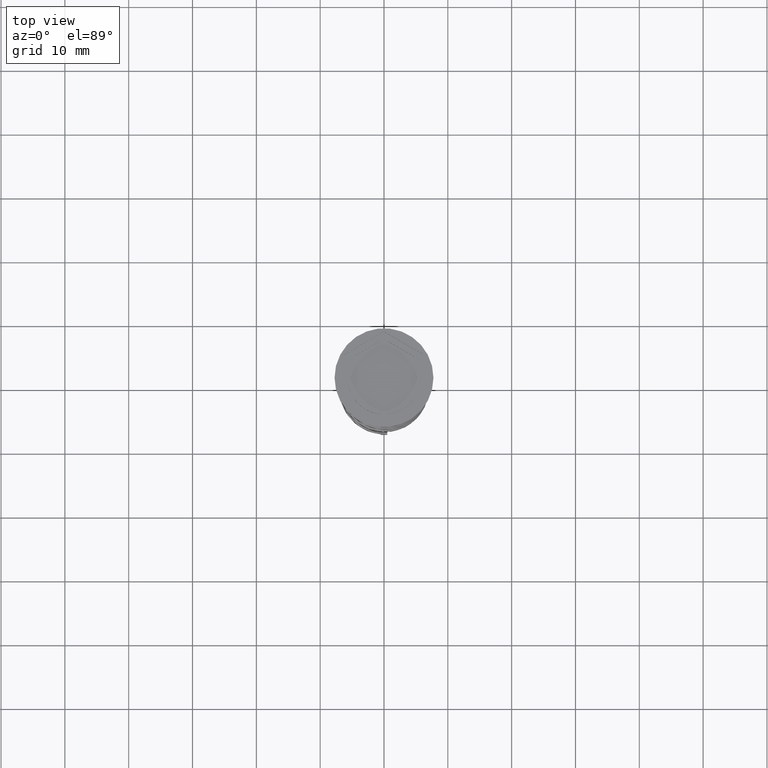
[diagram: clean part render]
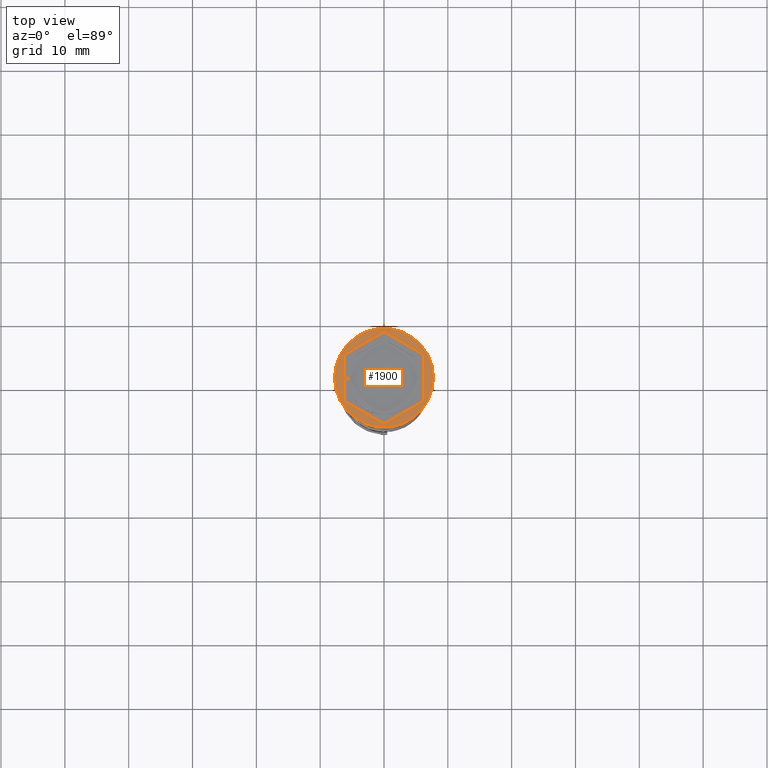
[diagram: same view with one face highlighted and labeled with its STEP entity id]
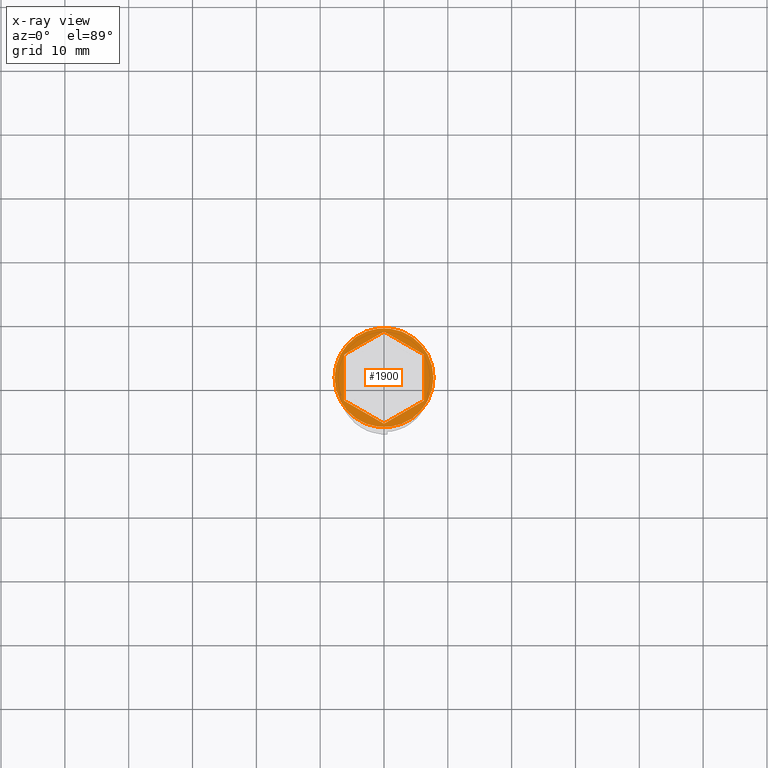
[diagram: x-ray of the same camera — body ghosted, the highlighted face saturated]
A machine part, top view. The second image highlights one B-rep face of the part: STEP entity #1900.
The next image is the same camera in x-ray: the body ghosted, the highlighted face saturated — about 0% of this face is hidden behind the body in this view.
In plain terms, the highlighted planar face has unit normal (0, -0, 1).
Its self-contained STEP definition (entity closure, byte-faithful):
#84 = DIRECTION ( 'NONE',  ( -0.000000000000000000, -0.000000000000000000, 1.000000000000000000 ) ) ;
#90 = EDGE_CURVE ( 'NONE', #936, #3116, #1438, .T. ) ;
#157 = CARTESIAN_POINT ( 'NONE',  ( -6.249999999999999112, 3.608439182435158710, 0.000000000000000000 ) ) ;
#175 = CARTESIAN_POINT ( 'NONE',  ( 6.250000000000000000, 3.608439182435161374, 0.000000000000000000 ) ) ;
#260 = ORIENTED_EDGE ( 'NONE', *, *, #1586, .F. ) ;
#261 = EDGE_CURVE ( 'NONE', #3148, #417, #1725, .T. ) ;
#272 = VERTEX_POINT ( 'NONE', #2702 ) ;
#286 = CARTESIAN_POINT ( 'NONE',  ( -6.249999999999999112, -3.608439182435161374, 0.000000000000000000 ) ) ;
#323 = DIRECTION ( 'NONE',  ( 0.8660254037844385966, -0.4999999999999998890, 0.000000000000000000 ) ) ;
#399 = CARTESIAN_POINT ( 'NONE',  ( 6.250000000000000000, 3.608439182435161374, 0.000000000000000000 ) ) ;
#417 = VERTEX_POINT ( 'NONE', #892 ) ;
#428 = AXIS2_PLACEMENT_3D ( 'NONE', #2801, #84, #3337 ) ;
#435 = CARTESIAN_POINT ( 'NONE',  ( 0.000000000000000000, 0.000000000000000000, 0.000000000000000000 ) ) ;
#445 = LINE ( 'NONE', #1559, #3374 ) ;
#534 = EDGE_CURVE ( 'NONE', #551, #1516, #1568, .T. ) ;
#551 = VERTEX_POINT ( 'NONE', #805 ) ;
#560 = LINE ( 'NONE', #286, #2848 ) ;
#566 = VERTEX_POINT ( 'NONE', #736 ) ;
#620 = EDGE_CURVE ( 'NONE', #272, #566, #560, .T. ) ;
#736 = CARTESIAN_POINT ( 'NONE',  ( 8.729740977282959667E-16, -7.216878364870321860, 0.000000000000000000 ) ) ;
#751 = CARTESIAN_POINT ( 'NONE',  ( 6.249999999999998224, -3.608439182435161374, 0.000000000000000000 ) ) ;
#782 = VECTOR ( 'NONE', #2828, 1000.000000000000000 ) ;
#805 = CARTESIAN_POINT ( 'NONE',  ( 6.249999999999998224, -3.608439182435161374, 0.000000000000000000 ) ) ;
#832 = VECTOR ( 'NONE', #2657, 1000.000000000000000 ) ;
#892 = CARTESIAN_POINT ( 'NONE',  ( 7.750000000000000000, 0.000000000000000000, 0.000000000000000000 ) ) ;
#936 = VERTEX_POINT ( 'NONE', #2855 ) ;
#1072 = ORIENTED_EDGE ( 'NONE', *, *, #2894, .T. ) ;
#1158 = AXIS2_PLACEMENT_3D ( 'NONE', #2086, #3401, #2049 ) ;
#1204 = ORIENTED_EDGE ( 'NONE', *, *, #90, .F. ) ;
#1227 = DIRECTION ( 'NONE',  ( 1.000000000000000000, 0.000000000000000000, 0.000000000000000000 ) ) ;
#1235 = CARTESIAN_POINT ( 'NONE',  ( -7.750000000000000000, 9.491012693391987787E-16, 0.000000000000000000 ) ) ;
#1289 = LINE ( 'NONE', #3174, #832 ) ;
#1376 = ORIENTED_EDGE ( 'NONE', *, *, #261, .T. ) ;
#1438 = LINE ( 'NONE', #1775, #1888 ) ;
#1440 = ORIENTED_EDGE ( 'NONE', *, *, #534, .F. ) ;
#1516 = VERTEX_POINT ( 'NONE', #175 ) ;
#1521 = EDGE_LOOP ( 'NONE', ( #2773, #1440, #260, #2807, #2474, #1204 ) ) ;
#1559 = CARTESIAN_POINT ( 'NONE',  ( 8.729740977282959667E-16, -7.216878364870321860, 0.000000000000000000 ) ) ;
#1568 = LINE ( 'NONE', #751, #2729 ) ;
#1586 = EDGE_CURVE ( 'NONE', #566, #551, #445, .T. ) ;
#1725 = CIRCLE ( 'NONE', #1158, 7.750000000000000000 ) ;
#1759 = LINE ( 'NONE', #399, #782 ) ;
#1775 = CARTESIAN_POINT ( 'NONE',  ( 0.000000000000000000, 7.216878364870320084, 0.000000000000000000 ) ) ;
#1813 = DIRECTION ( 'NONE',  ( 2.403703357979454647E-16, 1.000000000000000000, 0.000000000000000000 ) ) ;
#1888 = VECTOR ( 'NONE', #2827, 1000.000000000000114 ) ;
#1900 = ADVANCED_FACE ( 'NONE', ( #3363, #3345 ), #2033, .T. ) ;
#2032 = EDGE_CURVE ( 'NONE', #1516, #936, #1759, .T. ) ;
#2033 = PLANE ( 'NONE',  #3197 ) ;
#2049 = DIRECTION ( 'NONE',  ( 1.000000000000000000, 0.000000000000000000, 0.000000000000000000 ) ) ;
#2086 = CARTESIAN_POINT ( 'NONE',  ( 0.000000000000000000, 0.000000000000000000, 0.000000000000000000 ) ) ;
#2343 = EDGE_LOOP ( 'NONE', ( #1072, #1376 ) ) ;
#2463 = DIRECTION ( 'NONE',  ( 0.8660254037844385966, 0.5000000000000001110, 0.000000000000000000 ) ) ;
#2474 = ORIENTED_EDGE ( 'NONE', *, *, #3120, .F. ) ;
#2639 = CIRCLE ( 'NONE', #428, 7.750000000000000000 ) ;
#2657 = DIRECTION ( 'NONE',  ( 0.000000000000000000, -1.000000000000000000, 0.000000000000000000 ) ) ;
#2702 = CARTESIAN_POINT ( 'NONE',  ( -6.249999999999999112, -3.608439182435161374, 0.000000000000000000 ) ) ;
#2729 = VECTOR ( 'NONE', #1813, 1000.000000000000000 ) ;
#2773 = ORIENTED_EDGE ( 'NONE', *, *, #2032, .F. ) ;
#2789 = DIRECTION ( 'NONE',  ( 0.000000000000000000, -0.000000000000000000, 1.000000000000000000 ) ) ;
#2801 = CARTESIAN_POINT ( 'NONE',  ( 0.000000000000000000, 0.000000000000000000, 0.000000000000000000 ) ) ;
#2807 = ORIENTED_EDGE ( 'NONE', *, *, #620, .F. ) ;
#2827 = DIRECTION ( 'NONE',  ( -0.8660254037844385966, -0.5000000000000001110, 0.000000000000000000 ) ) ;
#2828 = DIRECTION ( 'NONE',  ( -0.8660254037844388186, 0.4999999999999997224, 0.000000000000000000 ) ) ;
#2848 = VECTOR ( 'NONE', #323, 1000.000000000000227 ) ;
#2855 = CARTESIAN_POINT ( 'NONE',  ( 0.000000000000000000, 7.216878364870319196, 0.000000000000000000 ) ) ;
#2894 = EDGE_CURVE ( 'NONE', #417, #3148, #2639, .T. ) ;
#3116 = VERTEX_POINT ( 'NONE', #157 ) ;
#3120 = EDGE_CURVE ( 'NONE', #3116, #272, #1289, .T. ) ;
#3148 = VERTEX_POINT ( 'NONE', #1235 ) ;
#3174 = CARTESIAN_POINT ( 'NONE',  ( -6.249999999999999112, 3.608439182435158710, 0.000000000000000000 ) ) ;
#3197 = AXIS2_PLACEMENT_3D ( 'NONE', #435, #2789, #1227 ) ;
#3337 = DIRECTION ( 'NONE',  ( 1.000000000000000000, 0.000000000000000000, 0.000000000000000000 ) ) ;
#3345 = FACE_OUTER_BOUND ( 'NONE', #2343, .T. ) ;
#3363 = FACE_BOUND ( 'NONE', #1521, .T. ) ;
#3374 = VECTOR ( 'NONE', #2463, 1000.000000000000000 ) ;
#3401 = DIRECTION ( 'NONE',  ( -0.000000000000000000, -0.000000000000000000, 1.000000000000000000 ) ) ;